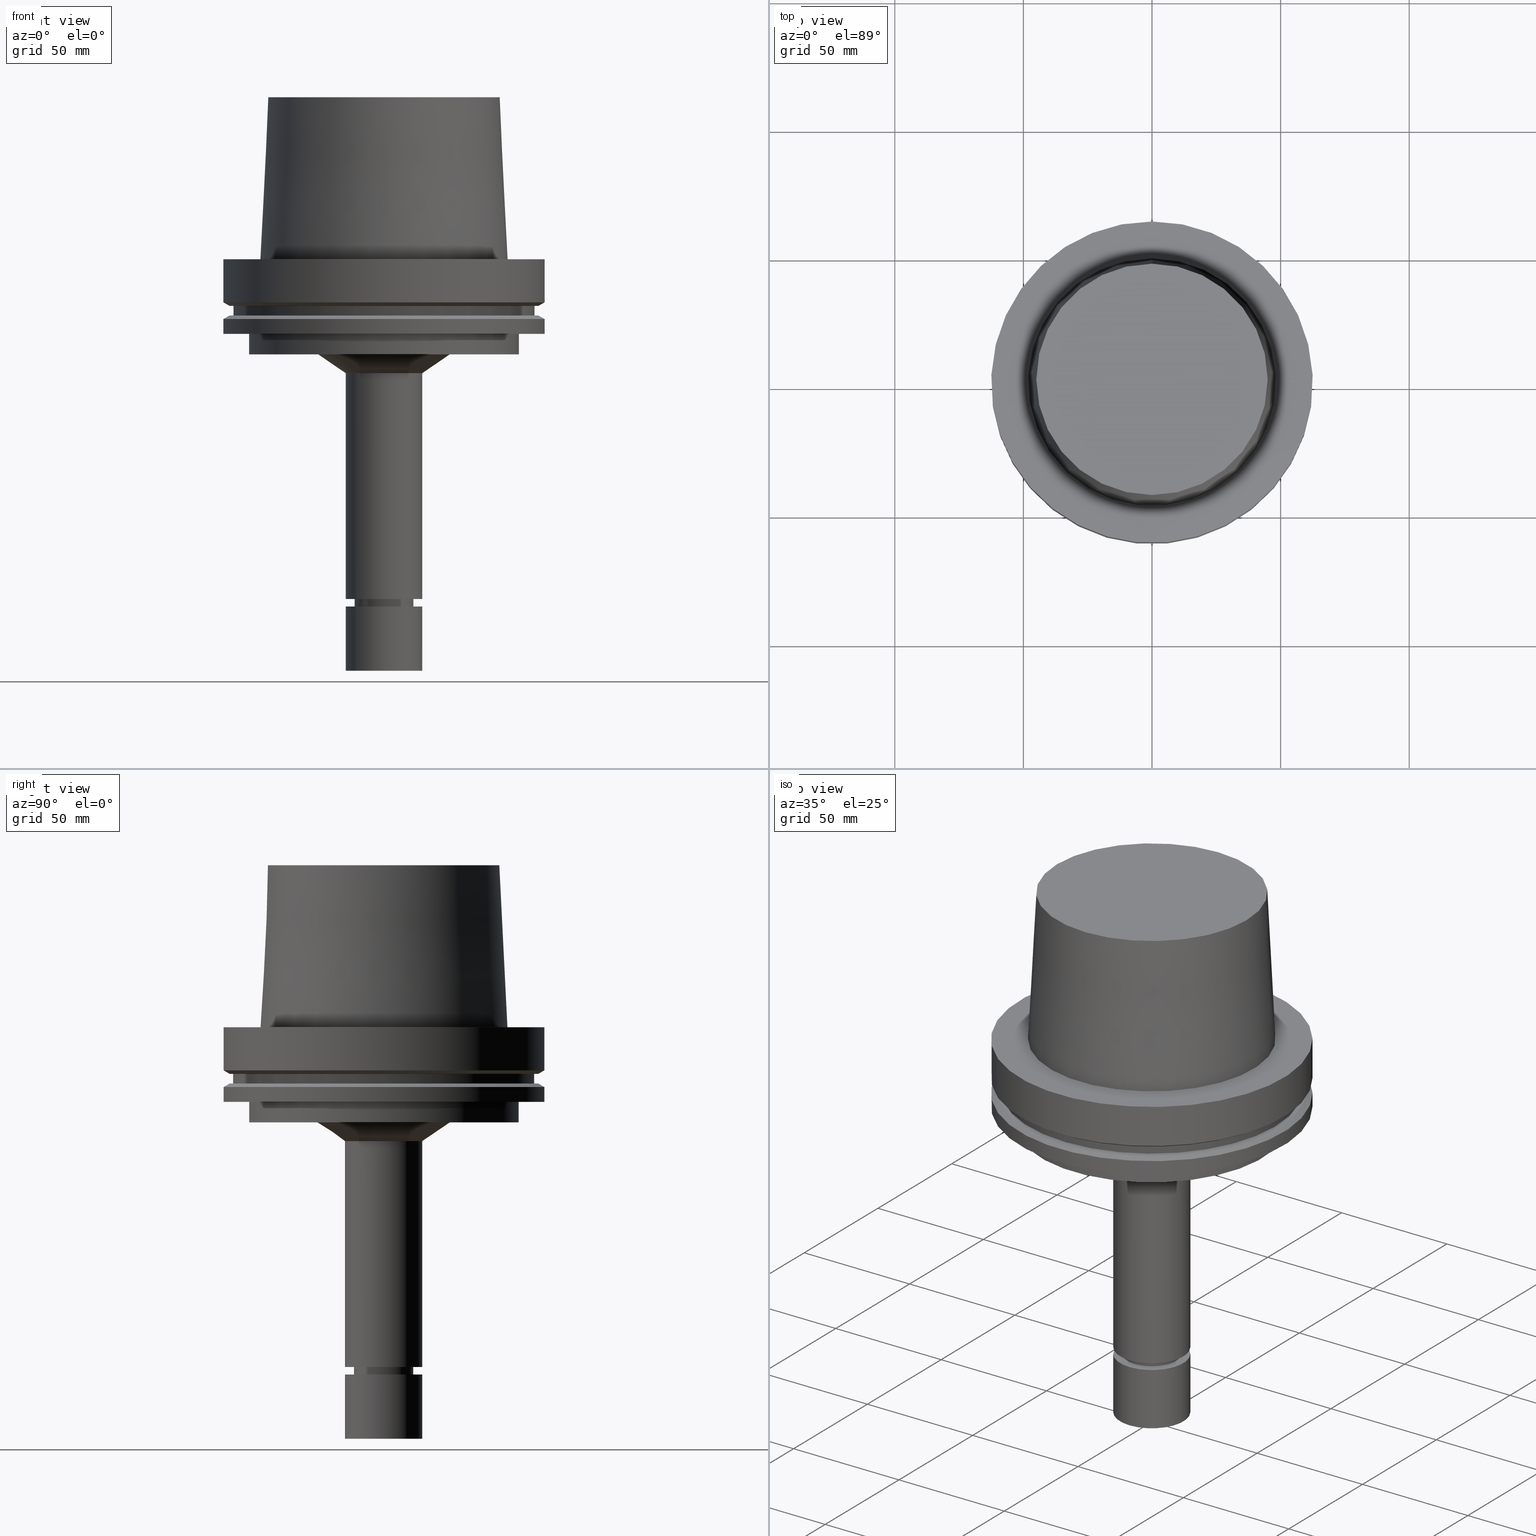
[diagram: canonical four-view strip — front | top / right | iso, engineering-drawing reading convention]
A machine part, canonical four-view strip (front | top / right | iso — engineering-drawing reading convention). The complete STEP part file that produces these views, byte-faithful:
ISO-10303-21;
HEADER;
FILE_DESCRIPTION((''),'1');
FILE_NAME('U:/Translate/02_3D_Field-HP\X2\FF71FF6FFF8CFF9F5916\X0\2013/02_Step_Field-HP\X2\FF71FF6FFF8CFF9F5916\X0\2013/HSK-A125-MEGAER16-160NL.stp','2016-06-22T04:30:00',(''),(''),'Spatial Interop R21 SP3','Kubotek KeyCreator 2011 V10.0.2 (22737)',' ');
FILE_SCHEMA(('automotive_design'));
ENDSEC;
DATA;
#1=MECHANICAL_DESIGN_GEOMETRIC_PRESENTATION_REPRESENTATION(' ',(#14,#15,#16,#17,#18,#19,#20,#21,#22,#23,#24,#25,#26,#27,#28,#29,#30,#31,#32,#33,#34,#35,#36,#37,#38,#39,#40,#41,#42,#43,#44,#45,#46,#47,#48,#49,#50,#51,#52,#53,#54,#55,#56,#57,#58,#59,#60,#61),#10);
#2=PRODUCT_DEFINITION_CONTEXT('',#62,'design');
#3=APPLICATION_PROTOCOL_DEFINITION('INTERNATIONAL STANDARD','automotive_design',1994,#62);
#4=PRODUCT_CATEGORY_RELATIONSHIP('NONE','NONE',#63,#64);
#5=SHAPE_DEFINITION_REPRESENTATION(#65,#66);
#6=PRODUCT_DEFINITION_CONTEXT('',#67,'design');
#7=APPLICATION_PROTOCOL_DEFINITION('INTERNATIONAL STANDARD','automotive_design',1994,#67);
#8=PRODUCT_CATEGORY_RELATIONSHIP('NONE','NONE',#68,#69);
#9=SHAPE_DEFINITION_REPRESENTATION(#70,#71);
#10= (GEOMETRIC_REPRESENTATION_CONTEXT(3)GLOBAL_UNCERTAINTY_ASSIGNED_CONTEXT((#74))GLOBAL_UNIT_ASSIGNED_CONTEXT((#76,#77,#78))REPRESENTATION_CONTEXT('NONE','WORKSPACE'));
#14=STYLED_ITEM('',(#80),#81);
#15=STYLED_ITEM('',(#82,#83),#84);
#16=STYLED_ITEM('',(#85),#86);
#17=STYLED_ITEM('',(#87,#88),#89);
#18=STYLED_ITEM('',(#90,#91),#92);
#19=STYLED_ITEM('',(#93,#94),#95);
#20=STYLED_ITEM('',(#96),#97);
#21=STYLED_ITEM('',(#98,#99),#100);
#22=STYLED_ITEM('',(#101,#102),#103);
#23=STYLED_ITEM('',(#104,#105),#106);
#24=STYLED_ITEM('',(#107),#108);
#25=STYLED_ITEM('',(#109,#110),#111);
#26=STYLED_ITEM('',(#112),#113);
#27=STYLED_ITEM('',(#114,#115),#116);
#28=STYLED_ITEM('',(#117,#118),#119);
#29=STYLED_ITEM('',(#120),#121);
#30=STYLED_ITEM('',(#122,#123),#124);
#31=STYLED_ITEM('',(#125),#126);
#32=STYLED_ITEM('',(#127),#128);
#33=STYLED_ITEM('',(#129),#130);
#34=STYLED_ITEM('',(#131,#132),#133);
#35=STYLED_ITEM('',(#134,#135),#136);
#36=STYLED_ITEM('',(#137),#138);
#37=STYLED_ITEM('',(#139),#140);
#38=STYLED_ITEM('',(#141,#142),#143);
#39=STYLED_ITEM('',(#144),#145);
#40=STYLED_ITEM('',(#146,#147),#148);
#41=STYLED_ITEM('',(#149,#150),#151);
#42=STYLED_ITEM('',(#152,#153),#154);
#43=STYLED_ITEM('',(#155,#156),#157);
#44=STYLED_ITEM('',(#158,#159),#160);
#45=STYLED_ITEM('',(#161),#162);
#46=STYLED_ITEM('',(#163),#164);
#47=STYLED_ITEM('',(#165,#166),#167);
#48=STYLED_ITEM('',(#168),#169);
#49=STYLED_ITEM('',(#170,#171),#172);
#50=STYLED_ITEM('',(#173),#174);
#51=STYLED_ITEM('',(#175),#176);
#52=STYLED_ITEM('',(#177),#178);
#53=STYLED_ITEM('',(#179),#180);
#54=STYLED_ITEM('',(#181,#182),#183);
#55=STYLED_ITEM('',(#184),#185);
#56=STYLED_ITEM('',(#186),#187);
#57=STYLED_ITEM('',(#188,#189),#190);
#58=STYLED_ITEM('',(#191),#192);
#59=STYLED_ITEM('',(#193,#194),#195);
#60=STYLED_ITEM('',(#196,#197),#198);
#61=STYLED_ITEM('',(#199,#200),#201);
#62=APPLICATION_CONTEXT(' ');
#63=PRODUCT_CATEGORY('part','NONE');
#64=PRODUCT_RELATED_PRODUCT_CATEGORY('detail',' ',(#202));
#65=PRODUCT_DEFINITION_SHAPE('NONE','NONE',#203);
#66=ADVANCED_BREP_SHAPE_REPRESENTATION('Unnamed[1]',(#172,#204),#10);
#67=APPLICATION_CONTEXT(' ');
#68=PRODUCT_CATEGORY('part','NONE');
#69=PRODUCT_RELATED_PRODUCT_CATEGORY('detail',' ',(#205));
#70=PRODUCT_DEFINITION_SHAPE('NONE','NONE',#206);
#71=ADVANCED_BREP_SHAPE_REPRESENTATION('Unnamed[1]',(#84,#207),#10);
#74=UNCERTAINTY_MEASURE_WITH_UNIT(LENGTH_MEASURE(1.0E-006),#76,'','');
#76= (CONVERSION_BASED_UNIT('MILLIMETRE',#210)LENGTH_UNIT()NAMED_UNIT(#213));
#77= (NAMED_UNIT(#215)PLANE_ANGLE_UNIT()SI_UNIT($,.RADIAN.));
#78= (NAMED_UNIT(#215)SOLID_ANGLE_UNIT()SI_UNIT($,.STERADIAN.));
#80=PRESENTATION_STYLE_ASSIGNMENT((#221));
#81=EDGE_CURVE('Unnamed[1]',#222,#222,#223,.T.);
#82=PRESENTATION_STYLE_ASSIGNMENT((#224));
#83=PRESENTATION_STYLE_ASSIGNMENT((#225));
#84=MANIFOLD_SOLID_BREP('Unnamed[1]',#226);
#85=PRESENTATION_STYLE_ASSIGNMENT((#227));
#86=EDGE_CURVE('Unnamed[1]',#228,#228,#229,.T.);
#87=PRESENTATION_STYLE_ASSIGNMENT((#230));
#88=PRESENTATION_STYLE_ASSIGNMENT((#231));
#89=ADVANCED_FACE('Unnamed[1]',(#232,#233),#234,.T.);
#90=PRESENTATION_STYLE_ASSIGNMENT((#235));
#91=PRESENTATION_STYLE_ASSIGNMENT((#236));
#92=ADVANCED_FACE('Unnamed[1]',(#237,#238),#239,.T.);
#93=PRESENTATION_STYLE_ASSIGNMENT((#240));
#94=PRESENTATION_STYLE_ASSIGNMENT((#241));
#95=ADVANCED_FACE('Unnamed[1]',(#242,#243),#244,.T.);
#96=PRESENTATION_STYLE_ASSIGNMENT((#245));
#97=EDGE_CURVE('Unnamed[1]',#246,#246,#247,.T.);
#98=PRESENTATION_STYLE_ASSIGNMENT((#248));
#99=PRESENTATION_STYLE_ASSIGNMENT((#249));
#100=ADVANCED_FACE('Unnamed[1]',(#250),#251,.T.);
#101=PRESENTATION_STYLE_ASSIGNMENT((#252));
#102=PRESENTATION_STYLE_ASSIGNMENT((#253));
#103=ADVANCED_FACE('Unnamed[1]',(#254,#255),#256,.T.);
#104=PRESENTATION_STYLE_ASSIGNMENT((#257));
#105=PRESENTATION_STYLE_ASSIGNMENT((#258));
#106=ADVANCED_FACE('Unnamed[1]',(#259),#260,.T.);
#107=PRESENTATION_STYLE_ASSIGNMENT((#261));
#108=EDGE_CURVE('Unnamed[1]',#262,#262,#263,.T.);
#109=PRESENTATION_STYLE_ASSIGNMENT((#264));
#110=PRESENTATION_STYLE_ASSIGNMENT((#265));
#111=ADVANCED_FACE('Unnamed[1]',(#266),#267,.T.);
#112=PRESENTATION_STYLE_ASSIGNMENT((#268));
#113=EDGE_CURVE('Unnamed[1]',#269,#269,#270,.T.);
#114=PRESENTATION_STYLE_ASSIGNMENT((#271));
#115=PRESENTATION_STYLE_ASSIGNMENT((#272));
#116=ADVANCED_FACE('Unnamed[1]',(#273,#274),#275,.T.);
#117=PRESENTATION_STYLE_ASSIGNMENT((#276));
#118=PRESENTATION_STYLE_ASSIGNMENT((#277));
#119=ADVANCED_FACE('Unnamed[1]',(#278,#279),#280,.T.);
#120=PRESENTATION_STYLE_ASSIGNMENT((#281));
#121=EDGE_CURVE('Unnamed[1]',#282,#282,#283,.T.);
#122=PRESENTATION_STYLE_ASSIGNMENT((#284));
#123=PRESENTATION_STYLE_ASSIGNMENT((#285));
#124=ADVANCED_FACE('Unnamed[1]',(#286,#287),#288,.T.);
#125=PRESENTATION_STYLE_ASSIGNMENT((#289));
#126=EDGE_CURVE('Unnamed[1]',#290,#290,#291,.T.);
#127=PRESENTATION_STYLE_ASSIGNMENT((#292));
#128=EDGE_CURVE('Unnamed[1]',#293,#293,#294,.T.);
#129=PRESENTATION_STYLE_ASSIGNMENT((#295));
#130=EDGE_CURVE('Unnamed[1]',#296,#296,#297,.T.);
#131=PRESENTATION_STYLE_ASSIGNMENT((#298));
#132=PRESENTATION_STYLE_ASSIGNMENT((#299));
#133=ADVANCED_FACE('Unnamed[1]',(#300,#301),#302,.T.);
#134=PRESENTATION_STYLE_ASSIGNMENT((#303));
#135=PRESENTATION_STYLE_ASSIGNMENT((#304));
#136=ADVANCED_FACE('Unnamed[1]',(#305,#306),#307,.T.);
#137=PRESENTATION_STYLE_ASSIGNMENT((#308));
#138=EDGE_CURVE('Unnamed[1]',#309,#309,#310,.T.);
#139=PRESENTATION_STYLE_ASSIGNMENT((#311));
#140=EDGE_CURVE('Unnamed[1]',#312,#312,#313,.T.);
#141=PRESENTATION_STYLE_ASSIGNMENT((#314));
#142=PRESENTATION_STYLE_ASSIGNMENT((#315));
#143=ADVANCED_FACE('Unnamed[1]',(#316),#317,.T.);
#144=PRESENTATION_STYLE_ASSIGNMENT((#318));
#145=EDGE_CURVE('Unnamed[1]',#319,#319,#320,.T.);
#146=PRESENTATION_STYLE_ASSIGNMENT((#321));
#147=PRESENTATION_STYLE_ASSIGNMENT((#322));
#148=ADVANCED_FACE('Unnamed[1]',(#323,#324),#325,.T.);
#149=PRESENTATION_STYLE_ASSIGNMENT((#326));
#150=PRESENTATION_STYLE_ASSIGNMENT((#327));
#151=ADVANCED_FACE('Unnamed[1]',(#328,#329),#330,.T.);
#152=PRESENTATION_STYLE_ASSIGNMENT((#331));
#153=PRESENTATION_STYLE_ASSIGNMENT((#332));
#154=ADVANCED_FACE('Unnamed[1]',(#333,#334),#335,.T.);
#155=PRESENTATION_STYLE_ASSIGNMENT((#336));
#156=PRESENTATION_STYLE_ASSIGNMENT((#337));
#157=ADVANCED_FACE('Unnamed[1]',(#338,#339),#340,.T.);
#158=PRESENTATION_STYLE_ASSIGNMENT((#341));
#159=PRESENTATION_STYLE_ASSIGNMENT((#342));
#160=ADVANCED_FACE('Unnamed[1]',(#343,#344),#345,.T.);
#161=PRESENTATION_STYLE_ASSIGNMENT((#346));
#162=EDGE_CURVE('Unnamed[1]',#347,#347,#348,.T.);
#163=PRESENTATION_STYLE_ASSIGNMENT((#349));
#164=EDGE_CURVE('Unnamed[1]',#350,#350,#351,.T.);
#165=PRESENTATION_STYLE_ASSIGNMENT((#352));
#166=PRESENTATION_STYLE_ASSIGNMENT((#353));
#167=ADVANCED_FACE('Unnamed[1]',(#354,#355),#356,.T.);
#168=PRESENTATION_STYLE_ASSIGNMENT((#357));
#169=EDGE_CURVE('Unnamed[1]',#358,#358,#359,.T.);
#170=PRESENTATION_STYLE_ASSIGNMENT((#360));
#171=PRESENTATION_STYLE_ASSIGNMENT((#361));
#172=MANIFOLD_SOLID_BREP('Unnamed[1]',#362);
#173=PRESENTATION_STYLE_ASSIGNMENT((#363));
#174=EDGE_CURVE('Unnamed[1]',#364,#364,#365,.T.);
#175=PRESENTATION_STYLE_ASSIGNMENT((#366));
#176=EDGE_CURVE('Unnamed[1]',#367,#367,#368,.T.);
#177=PRESENTATION_STYLE_ASSIGNMENT((#369));
#178=EDGE_CURVE('Unnamed[1]',#370,#370,#371,.T.);
#179=PRESENTATION_STYLE_ASSIGNMENT((#372));
#180=EDGE_CURVE('Unnamed[1]',#373,#373,#374,.T.);
#181=PRESENTATION_STYLE_ASSIGNMENT((#375));
#182=PRESENTATION_STYLE_ASSIGNMENT((#376));
#183=ADVANCED_FACE('Unnamed[1]',(#377,#378),#379,.T.);
#184=PRESENTATION_STYLE_ASSIGNMENT((#380));
#185=EDGE_CURVE('Unnamed[1]',#381,#381,#382,.T.);
#186=PRESENTATION_STYLE_ASSIGNMENT((#383));
#187=EDGE_CURVE('Unnamed[1]',#384,#384,#385,.T.);
#188=PRESENTATION_STYLE_ASSIGNMENT((#386));
#189=PRESENTATION_STYLE_ASSIGNMENT((#387));
#190=ADVANCED_FACE('Unnamed[1]',(#388,#389),#390,.T.);
#191=PRESENTATION_STYLE_ASSIGNMENT((#391));
#192=EDGE_CURVE('Unnamed[1]',#392,#392,#393,.T.);
#193=PRESENTATION_STYLE_ASSIGNMENT((#394));
#194=PRESENTATION_STYLE_ASSIGNMENT((#395));
#195=ADVANCED_FACE('Unnamed[1]',(#396,#397),#398,.T.);
#196=PRESENTATION_STYLE_ASSIGNMENT((#399));
#197=PRESENTATION_STYLE_ASSIGNMENT((#400));
#198=ADVANCED_FACE('Unnamed[1]',(#401,#402),#403,.T.);
#199=PRESENTATION_STYLE_ASSIGNMENT((#404));
#200=PRESENTATION_STYLE_ASSIGNMENT((#405));
#201=ADVANCED_FACE('Unnamed[1]',(#406,#407),#408,.T.);
#202=PRODUCT('Unnamed[1]','Unnamed[1]','PART-Unnamed[1]-DESC',(#409));
#203=PRODUCT_DEFINITION('NONE','NONE',#410,#2);
#204=AXIS2_PLACEMENT_3D('',#411,#412,#413);
#205=PRODUCT('Unnamed[1]','Unnamed[1]','PART-Unnamed[1]-DESC',(#414));
#206=PRODUCT_DEFINITION('NONE','NONE',#415,#6);
#207=AXIS2_PLACEMENT_3D('',#416,#417,#418);
#210=LENGTH_MEASURE_WITH_UNIT(LENGTH_MEASURE(1.0),#419);
#213=DIMENSIONAL_EXPONENTS(1.0,0.0,0.0,0.0,0.0,0.0,0.0);
#215=DIMENSIONAL_EXPONENTS(0.0,0.0,0.0,0.0,0.0,0.0,0.0);
#221=CURVE_STYLE('',#420,POSITIVE_LENGTH_MEASURE(1000.0),#421);
#222=VERTEX_POINT('',#422);
#223=CIRCLE('',#423,62.5);
#224=SURFACE_STYLE_USAGE(.BOTH.,#424);
#225=CURVE_STYLE('',#425,POSITIVE_LENGTH_MEASURE(1000.0),#426);
#226=CLOSED_SHELL('',(#100,#111,#148));
#227=CURVE_STYLE('',#427,POSITIVE_LENGTH_MEASURE(1000.0),#428);
#228=VERTEX_POINT('',#429);
#229=CIRCLE('',#430,52.5);
#230=SURFACE_STYLE_USAGE(.BOTH.,#431);
#231=CURVE_STYLE('',#432,POSITIVE_LENGTH_MEASURE(1000.0),#433);
#232=FACE_BOUND('',#434,.T.);
#233=FACE_BOUND('',#435,.T.);
#234=CONICAL_SURFACE('',#436,20.3465340776725,0.974044773767838);
#235=SURFACE_STYLE_USAGE(.BOTH.,#437);
#236=CURVE_STYLE('',#438,POSITIVE_LENGTH_MEASURE(1000.0),#439);
#237=FACE_BOUND('',#440,.T.);
#238=FACE_BOUND('',#441,.T.);
#239=CYLINDRICAL_SURFACE('',#442,62.5000000000001);
#240=SURFACE_STYLE_USAGE(.BOTH.,#443);
#241=CURVE_STYLE('',#444,POSITIVE_LENGTH_MEASURE(1000.0),#445);
#242=FACE_BOUND('',#446,.T.);
#243=FACE_BOUND('',#447,.T.);
#244=CYLINDRICAL_SURFACE('',#448,11.4999999999965);
#245=CURVE_STYLE('',#449,POSITIVE_LENGTH_MEASURE(1000.0),#450);
#246=VERTEX_POINT('',#451);
#247=CIRCLE('',#452,48.1342525050097);
#248=SURFACE_STYLE_USAGE(.BOTH.,#453);
#249=CURVE_STYLE('',#454,POSITIVE_LENGTH_MEASURE(1000.0),#455);
#250=FACE_OUTER_BOUND('',#456,.T.);
#251=PLANE('',#457);
#252=SURFACE_STYLE_USAGE(.BOTH.,#458);
#253=CURVE_STYLE('',#459,POSITIVE_LENGTH_MEASURE(1000.0),#460);
#254=FACE_BOUND('',#461,.T.);
#255=FACE_OUTER_BOUND('',#462,.T.);
#256=PLANE('',#463);
#257=SURFACE_STYLE_USAGE(.BOTH.,#464);
#258=CURVE_STYLE('',#465,POSITIVE_LENGTH_MEASURE(1000.0),#466);
#259=FACE_OUTER_BOUND('',#467,.T.);
#260=PLANE('',#468);
#261=CURVE_STYLE('',#469,POSITIVE_LENGTH_MEASURE(1000.0),#470);
#262=VERTEX_POINT('',#471);
#263=CIRCLE('',#472,60.1225952641912);
#264=SURFACE_STYLE_USAGE(.BOTH.,#473);
#265=CURVE_STYLE('',#474,POSITIVE_LENGTH_MEASURE(1000.0),#475);
#266=FACE_OUTER_BOUND('',#476,.T.);
#267=PLANE('',#477);
#268=CURVE_STYLE('',#478,POSITIVE_LENGTH_MEASURE(1000.0),#479);
#269=VERTEX_POINT('',#480);
#270=CIRCLE('',#481,15.0000000000002);
#271=SURFACE_STYLE_USAGE(.BOTH.,#482);
#272=CURVE_STYLE('',#483,POSITIVE_LENGTH_MEASURE(1000.0),#484);
#273=FACE_BOUND('',#485,.T.);
#274=FACE_BOUND('',#486,.T.);
#275=CONICAL_SURFACE('',#487,61.3112976320956,1.04719755119668);
#276=SURFACE_STYLE_USAGE(.BOTH.,#488);
#277=CURVE_STYLE('',#489,POSITIVE_LENGTH_MEASURE(1000.0),#490);
#278=FACE_OUTER_BOUND('',#491,.T.);
#279=FACE_BOUND('',#492,.T.);
#280=PLANE('',#493);
#281=CURVE_STYLE('',#494,POSITIVE_LENGTH_MEASURE(1000.0),#495);
#282=VERTEX_POINT('',#496);
#283=CIRCLE('',#497,60.122595264194);
#284=SURFACE_STYLE_USAGE(.BOTH.,#498);
#285=CURVE_STYLE('',#499,POSITIVE_LENGTH_MEASURE(1000.0),#500);
#286=FACE_BOUND('',#501,.T.);
#287=FACE_BOUND('',#502,.T.);
#288=CYLINDRICAL_SURFACE('',#503,58.4999999999999);
#289=CURVE_STYLE('',#504,POSITIVE_LENGTH_MEASURE(1000.0),#505);
#290=VERTEX_POINT('',#506);
#291=CIRCLE('',#507,52.4999999999999);
#292=CURVE_STYLE('',#508,POSITIVE_LENGTH_MEASURE(1000.0),#509);
#293=VERTEX_POINT('',#510);
#294=CIRCLE('',#511,11.0);
#295=CURVE_STYLE('',#512,POSITIVE_LENGTH_MEASURE(1000.0),#513);
#296=VERTEX_POINT('',#514);
#297=CIRCLE('',#515,11.0000000000004);
#298=SURFACE_STYLE_USAGE(.BOTH.,#516);
#299=CURVE_STYLE('',#517,POSITIVE_LENGTH_MEASURE(1000.0),#518);
#300=FACE_BOUND('',#519,.T.);
#301=FACE_BOUND('',#520,.T.);
#302=CYLINDRICAL_SURFACE('',#521,11.0000000000002);
#303=SURFACE_STYLE_USAGE(.BOTH.,#522);
#304=CURVE_STYLE('',#523,POSITIVE_LENGTH_MEASURE(1000.0),#524);
#305=FACE_BOUND('',#525,.T.);
#306=FACE_BOUND('',#526,.T.);
#307=CONICAL_SURFACE('',#527,11.2500000000011,0.766162649701788);
#308=CURVE_STYLE('',#528,POSITIVE_LENGTH_MEASURE(1000.0),#529);
#309=VERTEX_POINT('',#530);
#310=CIRCLE('',#531,11.5000000000022);
#311=CURVE_STYLE('',#532,POSITIVE_LENGTH_MEASURE(1000.0),#533);
#312=VERTEX_POINT('',#534);
#313=CIRCLE('',#535,25.6930681553449);
#314=SURFACE_STYLE_USAGE(.BOTH.,#536);
#315=CURVE_STYLE('',#537,POSITIVE_LENGTH_MEASURE(1000.0),#538);
#316=FACE_OUTER_BOUND('',#539,.T.);
#317=PLANE('',#540);
#318=CURVE_STYLE('',#541,POSITIVE_LENGTH_MEASURE(1000.0),#542);
#319=VERTEX_POINT('',#543);
#320=CIRCLE('',#544,62.5);
#321=SURFACE_STYLE_USAGE(.BOTH.,#545);
#322=CURVE_STYLE('',#546,POSITIVE_LENGTH_MEASURE(1000.0),#547);
#323=FACE_BOUND('',#548,.T.);
#324=FACE_BOUND('',#549,.T.);
#325=CYLINDRICAL_SURFACE('',#550,15.0000000000002);
#326=SURFACE_STYLE_USAGE(.BOTH.,#551);
#327=CURVE_STYLE('',#552,POSITIVE_LENGTH_MEASURE(1000.0),#553);
#328=FACE_BOUND('',#554,.T.);
#329=FACE_BOUND('',#555,.T.);
#330=CYLINDRICAL_SURFACE('',#556,52.5);
#331=SURFACE_STYLE_USAGE(.BOTH.,#557);
#332=CURVE_STYLE('',#558,POSITIVE_LENGTH_MEASURE(1000.0),#559);
#333=FACE_BOUND('',#560,.T.);
#334=FACE_BOUND('',#561,.T.);
#335=CYLINDRICAL_SURFACE('',#562,62.5);
#336=SURFACE_STYLE_USAGE(.BOTH.,#563);
#337=CURVE_STYLE('',#564,POSITIVE_LENGTH_MEASURE(1000.0),#565);
#338=FACE_OUTER_BOUND('',#566,.T.);
#339=FACE_BOUND('',#567,.T.);
#340=PLANE('',#568);
#341=SURFACE_STYLE_USAGE(.BOTH.,#569);
#342=CURVE_STYLE('',#570,POSITIVE_LENGTH_MEASURE(1000.0),#571);
#343=FACE_BOUND('',#572,.T.);
#344=FACE_BOUND('',#573,.T.);
#345=CONICAL_SURFACE('',#574,10.4500000000001,0.523598775598198);
#346=CURVE_STYLE('',#575,POSITIVE_LENGTH_MEASURE(1000.0),#576);
#347=VERTEX_POINT('',#577);
#348=CIRCLE('',#578,58.4999999999998);
#349=CURVE_STYLE('',#579,POSITIVE_LENGTH_MEASURE(1000.0),#580);
#350=VERTEX_POINT('',#581);
#351=CIRCLE('',#582,11.4999999999908);
#352=SURFACE_STYLE_USAGE(.BOTH.,#583);
#353=CURVE_STYLE('',#584,POSITIVE_LENGTH_MEASURE(1000.0),#585);
#354=FACE_BOUND('',#586,.T.);
#355=FACE_BOUND('',#587,.T.);
#356=CONICAL_SURFACE('',#588,46.5560961923844,0.0500583457465964);
#357=CURVE_STYLE('',#589,POSITIVE_LENGTH_MEASURE(1000.0),#590);
#358=VERTEX_POINT('',#591);
#359=CIRCLE('',#592,62.5000000000002);
#360=SURFACE_STYLE_USAGE(.BOTH.,#593);
#361=CURVE_STYLE('',#594,POSITIVE_LENGTH_MEASURE(1000.0),#595);
#362=CLOSED_SHELL('',(#106,#167,#157,#92,#116,#201,#124,#119,#195,#154,#198,#151,#190,#89,#183,#103,#95,#136,#133,#160,#143));
#363=CURVE_STYLE('',#596,POSITIVE_LENGTH_MEASURE(1000.0),#597);
#364=VERTEX_POINT('',#598);
#365=CIRCLE('',#599,15.0000000000001);
#366=CURVE_STYLE('',#600,POSITIVE_LENGTH_MEASURE(1000.0),#601);
#367=VERTEX_POINT('',#602);
#368=CIRCLE('',#603,58.5000000000001);
#369=CURVE_STYLE('',#604,POSITIVE_LENGTH_MEASURE(1000.0),#605);
#370=VERTEX_POINT('',#606);
#371=CIRCLE('',#607,15.0000000000001);
#372=CURVE_STYLE('',#608,POSITIVE_LENGTH_MEASURE(1000.0),#609);
#373=VERTEX_POINT('',#610);
#374=CIRCLE('',#611,9.89999999999974);
#375=SURFACE_STYLE_USAGE(.BOTH.,#612);
#376=CURVE_STYLE('',#613,POSITIVE_LENGTH_MEASURE(1000.0),#614);
#377=FACE_BOUND('',#615,.T.);
#378=FACE_BOUND('',#616,.T.);
#379=CYLINDRICAL_SURFACE('',#617,15.0000000000001);
#380=CURVE_STYLE('',#618,POSITIVE_LENGTH_MEASURE(1000.0),#619);
#381=VERTEX_POINT('',#620);
#382=CIRCLE('',#621,62.5);
#383=CURVE_STYLE('',#622,POSITIVE_LENGTH_MEASURE(1000.0),#623);
#384=VERTEX_POINT('',#624);
#385=CIRCLE('',#625,15.0000000000001);
#386=SURFACE_STYLE_USAGE(.BOTH.,#626);
#387=CURVE_STYLE('',#627,POSITIVE_LENGTH_MEASURE(1000.0),#628);
#388=FACE_BOUND('',#629,.T.);
#389=FACE_OUTER_BOUND('',#630,.T.);
#390=PLANE('',#631);
#391=CURVE_STYLE('',#632,POSITIVE_LENGTH_MEASURE(1000.0),#633);
#392=VERTEX_POINT('',#634);
#393=CIRCLE('',#635,44.977939879759);
#394=SURFACE_STYLE_USAGE(.BOTH.,#636);
#395=CURVE_STYLE('',#637,POSITIVE_LENGTH_MEASURE(1000.0),#638);
#396=FACE_BOUND('',#639,.T.);
#397=FACE_BOUND('',#640,.T.);
#398=CONICAL_SURFACE('',#641,61.311297632097,1.04719755119646);
#399=SURFACE_STYLE_USAGE(.BOTH.,#642);
#400=CURVE_STYLE('',#643,POSITIVE_LENGTH_MEASURE(1000.0),#644);
#401=FACE_BOUND('',#645,.T.);
#402=FACE_OUTER_BOUND('',#646,.T.);
#403=PLANE('',#647);
#404=SURFACE_STYLE_USAGE(.BOTH.,#648);
#405=CURVE_STYLE('',#649,POSITIVE_LENGTH_MEASURE(1000.0),#650);
#406=FACE_BOUND('',#651,.T.);
#407=FACE_OUTER_BOUND('',#652,.T.);
#408=PLANE('',#653);
#409=PRODUCT_CONTEXT('',#62,'mechanical');
#410=PRODUCT_DEFINITION_FORMATION_WITH_SPECIFIED_SOURCE(' ','NONE',#202,.NOT_KNOWN.);
#411=CARTESIAN_POINT('',(0.0,0.0,0.0));
#412=DIRECTION('',(0.0,0.0,1.0));
#413=DIRECTION('',(1.0,0.0,0.0));
#414=PRODUCT_CONTEXT('',#67,'mechanical');
#415=PRODUCT_DEFINITION_FORMATION_WITH_SPECIFIED_SOURCE(' ','NONE',#205,.NOT_KNOWN.);
#416=CARTESIAN_POINT('',(0.0,0.0,0.0));
#417=DIRECTION('',(0.0,0.0,1.0));
#418=DIRECTION('',(1.0,0.0,0.0));
#419= (NAMED_UNIT(#213)LENGTH_UNIT()SI_UNIT(.MILLI.,.METRE.));
#420=DRAUGHTING_PRE_DEFINED_CURVE_FONT('continuous');
#421=COLOUR_RGB('',0.0,1.0,0.0);
#422=CARTESIAN_POINT('',(1.77573785876366E-015,62.5,-29.0));
#423=AXIS2_PLACEMENT_3D('',#655,#656,#657);
#424=SURFACE_SIDE_STYLE('',(#658));
#425=DRAUGHTING_PRE_DEFINED_CURVE_FONT('continuous');
#426=COLOUR_RGB('',0.0,1.0,0.0);
#427=DRAUGHTING_PRE_DEFINED_CURVE_FONT('continuous');
#428=COLOUR_RGB('',0.0,1.0,0.0);
#429=CARTESIAN_POINT('',(1.77573785876367E-015,52.5,-29.0000000000001));
#430=AXIS2_PLACEMENT_3D('',#659,#660,#661);
#431=SURFACE_SIDE_STYLE('',(#662));
#432=DRAUGHTING_PRE_DEFINED_CURVE_FONT('continuous');
#433=COLOUR_RGB('',0.0,1.0,0.0);
#434=EDGE_LOOP('',(#663));
#435=EDGE_LOOP('',(#664));
#436=AXIS2_PLACEMENT_3D('',#665,#666,#667);
#437=SURFACE_SIDE_STYLE('',(#668));
#438=DRAUGHTING_PRE_DEFINED_CURVE_FONT('continuous');
#439=COLOUR_RGB('',0.0,1.0,0.0);
#440=EDGE_LOOP('',(#669));
#441=EDGE_LOOP('',(#670));
#442=AXIS2_PLACEMENT_3D('',#671,#672,#673);
#443=SURFACE_SIDE_STYLE('',(#674));
#444=DRAUGHTING_PRE_DEFINED_CURVE_FONT('continuous');
#445=COLOUR_RGB('',0.0,1.0,0.0);
#446=EDGE_LOOP('',(#675));
#447=EDGE_LOOP('',(#676));
#448=AXIS2_PLACEMENT_3D('',#677,#678,#679);
#449=DRAUGHTING_PRE_DEFINED_CURVE_FONT('continuous');
#450=COLOUR_RGB('',0.0,1.0,0.0);
#451=CARTESIAN_POINT('',(3.88158335277612E-029,48.1342525050097,-6.37705254174039E-013));
#452=AXIS2_PLACEMENT_3D('',#680,#681,#682);
#453=SURFACE_SIDE_STYLE('',(#683));
#454=DRAUGHTING_PRE_DEFINED_CURVE_FONT('continuous');
#455=COLOUR_RGB('',0.0,1.0,0.0);
#456=EDGE_LOOP('',(#684));
#457=AXIS2_PLACEMENT_3D('',#685,#686,#687);
#458=SURFACE_SIDE_STYLE('',(#688));
#459=DRAUGHTING_PRE_DEFINED_CURVE_FONT('continuous');
#460=COLOUR_RGB('',0.0,1.0,0.0);
#461=EDGE_LOOP('',(#689));
#462=EDGE_LOOP('',(#690));
#463=AXIS2_PLACEMENT_3D('',#691,#692,#693);
#464=SURFACE_SIDE_STYLE('',(#694));
#465=DRAUGHTING_PRE_DEFINED_CURVE_FONT('continuous');
#466=COLOUR_RGB('',0.0,1.0,0.0);
#467=EDGE_LOOP('',(#695));
#468=AXIS2_PLACEMENT_3D('',#696,#697,#698);
#469=DRAUGHTING_PRE_DEFINED_CURVE_FONT('continuous');
#470=COLOUR_RGB('',0.0,1.0,0.0);
#471=CARTESIAN_POINT('',(1.10983616172729E-015,60.1225952641912,-18.1250000000001));
#472=AXIS2_PLACEMENT_3D('',#699,#700,#701);
#473=SURFACE_SIDE_STYLE('',(#702));
#474=DRAUGHTING_PRE_DEFINED_CURVE_FONT('continuous');
#475=COLOUR_RGB('',0.0,1.0,0.0);
#476=EDGE_LOOP('',(#703));
#477=AXIS2_PLACEMENT_3D('',#704,#705,#706);
#478=DRAUGHTING_PRE_DEFINED_CURVE_FONT('continuous');
#479=COLOUR_RGB('',0.0,1.0,0.0);
#480=CARTESIAN_POINT('',(8.26636589424463E-015,15.0000000000001,-135.0));
#481=AXIS2_PLACEMENT_3D('',#707,#708,#709);
#482=SURFACE_SIDE_STYLE('',(#710));
#483=DRAUGHTING_PRE_DEFINED_CURVE_FONT('continuous');
#484=COLOUR_RGB('',0.0,1.0,0.0);
#485=EDGE_LOOP('',(#711));
#486=EDGE_LOOP('',(#712));
#487=AXIS2_PLACEMENT_3D('',#713,#714,#715);
#488=SURFACE_SIDE_STYLE('',(#716));
#489=DRAUGHTING_PRE_DEFINED_CURVE_FONT('continuous');
#490=COLOUR_RGB('',0.0,1.0,0.0);
#491=EDGE_LOOP('',(#717));
#492=EDGE_LOOP('',(#718));
#493=AXIS2_PLACEMENT_3D('',#719,#720,#721);
#494=DRAUGHTING_PRE_DEFINED_CURVE_FONT('continuous');
#495=COLOUR_RGB('',0.0,1.0,0.0);
#496=CARTESIAN_POINT('',(1.33945743656747E-015,60.122595264194,-21.8750000000009));
#497=AXIS2_PLACEMENT_3D('',#722,#723,#724);
#498=SURFACE_SIDE_STYLE('',(#725));
#499=DRAUGHTING_PRE_DEFINED_CURVE_FONT('continuous');
#500=COLOUR_RGB('',0.0,1.0,0.0);
#501=EDGE_LOOP('',(#726));
#502=EDGE_LOOP('',(#727));
#503=AXIS2_PLACEMENT_3D('',#728,#729,#730);
#504=DRAUGHTING_PRE_DEFINED_CURVE_FONT('continuous');
#505=COLOUR_RGB('',0.0,1.0,0.0);
#506=CARTESIAN_POINT('',(2.26559657842261E-015,52.4999999999999,-37.0000000000001));
#507=AXIS2_PLACEMENT_3D('',#731,#732,#733);
#508=DRAUGHTING_PRE_DEFINED_CURVE_FONT('continuous');
#509=COLOUR_RGB('',0.0,1.0,0.0);
#510=CARTESIAN_POINT('',(8.47645038529099E-015,10.9999999999999,-138.430940107672));
#511=AXIS2_PLACEMENT_3D('',#734,#735,#736);
#512=DRAUGHTING_PRE_DEFINED_CURVE_FONT('continuous');
#513=COLOUR_RGB('',0.0,1.0,0.0);
#514=CARTESIAN_POINT('',(9.1416665252941E-015,11.0000000000003,-149.294744111672));
#515=AXIS2_PLACEMENT_3D('',#737,#738,#739);
#516=SURFACE_SIDE_STYLE('',(#740));
#517=DRAUGHTING_PRE_DEFINED_CURVE_FONT('continuous');
#518=COLOUR_RGB('',0.0,1.0,0.0);
#519=EDGE_LOOP('',(#741));
#520=EDGE_LOOP('',(#742));
#521=AXIS2_PLACEMENT_3D('',#743,#744,#745);
#522=SURFACE_SIDE_STYLE('',(#746));
#523=DRAUGHTING_PRE_DEFINED_CURVE_FONT('continuous');
#524=COLOUR_RGB('',0.0,1.0,0.0);
#525=EDGE_LOOP('',(#747));
#526=EDGE_LOOP('',(#748));
#527=AXIS2_PLACEMENT_3D('',#749,#750,#751);
#528=DRAUGHTING_PRE_DEFINED_CURVE_FONT('continuous');
#529=COLOUR_RGB('',0.0,1.0,0.0);
#530=CARTESIAN_POINT('',(8.44463312812961E-015,11.5000000000021,-137.911324865408));
#531=AXIS2_PLACEMENT_3D('',#752,#753,#754);
#532=DRAUGHTING_PRE_DEFINED_CURVE_FONT('continuous');
#533=COLOUR_RGB('',0.0,1.0,0.0);
#534=CARTESIAN_POINT('',(2.26559657842261E-015,25.6930681553449,-37.0000000000001));
#535=AXIS2_PLACEMENT_3D('',#755,#756,#757);
#536=SURFACE_SIDE_STYLE('',(#758));
#537=DRAUGHTING_PRE_DEFINED_CURVE_FONT('continuous');
#538=COLOUR_RGB('',0.0,1.0,0.0);
#539=EDGE_LOOP('',(#759));
#540=AXIS2_PLACEMENT_3D('',#760,#761,#762);
#541=DRAUGHTING_PRE_DEFINED_CURVE_FONT('continuous');
#542=COLOUR_RGB('',0.0,1.0,0.0);
#543=CARTESIAN_POINT('',(1.42350465640827E-015,62.5,-23.2475952641916));
#544=AXIS2_PLACEMENT_3D('',#763,#764,#765);
#545=SURFACE_SIDE_STYLE('',(#766));
#546=DRAUGHTING_PRE_DEFINED_CURVE_FONT('continuous');
#547=COLOUR_RGB('',0.0,1.0,0.0);
#548=EDGE_LOOP('',(#767));
#549=EDGE_LOOP('',(#768));
#550=AXIS2_PLACEMENT_3D('',#769,#770,#771);
#551=SURFACE_SIDE_STYLE('',(#772));
#552=DRAUGHTING_PRE_DEFINED_CURVE_FONT('continuous');
#553=COLOUR_RGB('',0.0,1.0,0.0);
#554=EDGE_LOOP('',(#773));
#555=EDGE_LOOP('',(#774));
#556=AXIS2_PLACEMENT_3D('',#775,#776,#777);
#557=SURFACE_SIDE_STYLE('',(#778));
#558=DRAUGHTING_PRE_DEFINED_CURVE_FONT('continuous');
#559=COLOUR_RGB('',0.0,1.0,0.0);
#560=EDGE_LOOP('',(#779));
#561=EDGE_LOOP('',(#780));
#562=AXIS2_PLACEMENT_3D('',#781,#782,#783);
#563=SURFACE_SIDE_STYLE('',(#784));
#564=DRAUGHTING_PRE_DEFINED_CURVE_FONT('continuous');
#565=COLOUR_RGB('',0.0,1.0,0.0);
#566=EDGE_LOOP('',(#785));
#567=EDGE_LOOP('',(#786));
#568=AXIS2_PLACEMENT_3D('',#787,#788,#789);
#569=SURFACE_SIDE_STYLE('',(#790));
#570=DRAUGHTING_PRE_DEFINED_CURVE_FONT('continuous');
#571=COLOUR_RGB('',0.0,1.0,0.0);
#572=EDGE_LOOP('',(#791));
#573=EDGE_LOOP('',(#792));
#574=AXIS2_PLACEMENT_3D('',#793,#794,#795);
#575=DRAUGHTING_PRE_DEFINED_CURVE_FONT('continuous');
#576=COLOUR_RGB('',0.0,1.0,0.0);
#577=CARTESIAN_POINT('',(1.33945743656732E-015,58.4999999999998,-21.8749999999984));
#578=AXIS2_PLACEMENT_3D('',#796,#797,#798);
#579=DRAUGHTING_PRE_DEFINED_CURVE_FONT('continuous');
#580=COLOUR_RGB('',0.0,1.0,0.0);
#581=CARTESIAN_POINT('',(8.08879210836827E-015,11.4999999999907,-132.1));
#582=AXIS2_PLACEMENT_3D('',#799,#800,#801);
#583=SURFACE_SIDE_STYLE('',(#802));
#584=DRAUGHTING_PRE_DEFINED_CURVE_FONT('continuous');
#585=COLOUR_RGB('',0.0,1.0,0.0);
#586=EDGE_LOOP('',(#803));
#587=EDGE_LOOP('',(#804));
#588=AXIS2_PLACEMENT_3D('',#805,#806,#807);
#589=DRAUGHTING_PRE_DEFINED_CURVE_FONT('continuous');
#590=COLOUR_RGB('',0.0,1.0,0.0);
#591=CARTESIAN_POINT('',(-5.58935713239973E-030,62.5000000000002,8.63540424946709E-014));
#592=AXIS2_PLACEMENT_3D('',#808,#809,#810);
#593=SURFACE_SIDE_STYLE('',(#811));
#594=DRAUGHTING_PRE_DEFINED_CURVE_FONT('continuous');
#595=COLOUR_RGB('',0.0,1.0,0.0);
#596=DRAUGHTING_PRE_DEFINED_CURVE_FONT('continuous');
#597=COLOUR_RGB('',0.0,1.0,0.0);
#598=CARTESIAN_POINT('',(9.79717439317883E-015,15.0,-160.0));
#599=AXIS2_PLACEMENT_3D('',#812,#813,#814);
#600=DRAUGHTING_PRE_DEFINED_CURVE_FONT('continuous');
#601=COLOUR_RGB('',0.0,1.0,0.0);
#602=CARTESIAN_POINT('',(1.10983616172739E-015,58.5,-18.1250000000017));
#603=AXIS2_PLACEMENT_3D('',#815,#816,#817);
#604=DRAUGHTING_PRE_DEFINED_CURVE_FONT('continuous');
#605=COLOUR_RGB('',0.0,1.0,0.0);
#606=CARTESIAN_POINT('',(8.08879210836823E-015,15.0,-132.099999999999));
#607=AXIS2_PLACEMENT_3D('',#818,#819,#820);
#608=DRAUGHTING_PRE_DEFINED_CURVE_FONT('continuous');
#609=COLOUR_RGB('',0.0,1.0,0.0);
#610=CARTESIAN_POINT('',(9.25832980155394E-015,9.89999999999963,-151.199999999999));
#611=AXIS2_PLACEMENT_3D('',#821,#822,#823);
#612=SURFACE_SIDE_STYLE('',(#824));
#613=DRAUGHTING_PRE_DEFINED_CURVE_FONT('continuous');
#614=COLOUR_RGB('',0.0,1.0,0.0);
#615=EDGE_LOOP('',(#825));
#616=EDGE_LOOP('',(#826));
#617=AXIS2_PLACEMENT_3D('',#827,#828,#829);
#618=DRAUGHTING_PRE_DEFINED_CURVE_FONT('continuous');
#619=COLOUR_RGB('',0.0,1.0,0.0);
#620=CARTESIAN_POINT('',(1.02578894188644E-015,62.5,-16.7524047358084));
#621=AXIS2_PLACEMENT_3D('',#830,#831,#832);
#622=DRAUGHTING_PRE_DEFINED_CURVE_FONT('continuous');
#623=COLOUR_RGB('',0.0,1.0,0.0);
#624=CARTESIAN_POINT('',(2.71042752545055E-015,15.0,-44.264640667622));
#625=AXIS2_PLACEMENT_3D('',#833,#834,#835);
#626=SURFACE_SIDE_STYLE('',(#836));
#627=DRAUGHTING_PRE_DEFINED_CURVE_FONT('continuous');
#628=COLOUR_RGB('',0.0,1.0,0.0);
#629=EDGE_LOOP('',(#837));
#630=EDGE_LOOP('',(#838));
#631=AXIS2_PLACEMENT_3D('',#839,#840,#841);
#632=DRAUGHTING_PRE_DEFINED_CURVE_FONT('continuous');
#633=COLOUR_RGB('',0.0,1.0,0.0);
#634=CARTESIAN_POINT('',(-3.85763741731416E-015,44.9779398797591,62.9999999999999));
#635=AXIS2_PLACEMENT_3D('',#842,#843,#844);
#636=SURFACE_SIDE_STYLE('',(#845));
#637=DRAUGHTING_PRE_DEFINED_CURVE_FONT('continuous');
#638=COLOUR_RGB('',0.0,1.0,0.0);
#639=EDGE_LOOP('',(#846));
#640=EDGE_LOOP('',(#847));
#641=AXIS2_PLACEMENT_3D('',#848,#849,#850);
#642=SURFACE_SIDE_STYLE('',(#851));
#643=DRAUGHTING_PRE_DEFINED_CURVE_FONT('continuous');
#644=COLOUR_RGB('',0.0,1.0,0.0);
#645=EDGE_LOOP('',(#852));
#646=EDGE_LOOP('',(#853));
#647=AXIS2_PLACEMENT_3D('',#854,#855,#856);
#648=SURFACE_SIDE_STYLE('',(#857));
#649=DRAUGHTING_PRE_DEFINED_CURVE_FONT('continuous');
#650=COLOUR_RGB('',0.0,1.0,0.0);
#651=EDGE_LOOP('',(#858));
#652=EDGE_LOOP('',(#859));
#653=AXIS2_PLACEMENT_3D('',#860,#861,#862);
#655=CARTESIAN_POINT('',(1.77573785876366E-015,-1.59592385681868E-014,-29.0));
#656=DIRECTION('',(6.12323399573676E-017,-7.06999605799599E-016,-1.0));
#657=DIRECTION('',(3.84640874812857E-032,1.0,-7.06999605799599E-016));
#658=SURFACE_STYLE_FILL_AREA(#863);
#659=CARTESIAN_POINT('',(1.77573785876367E-015,-1.59592385681869E-014,-29.0000000000001));
#660=DIRECTION('',(6.12323399573677E-017,-7.06999605799461E-016,-1.0));
#661=DIRECTION('',(3.84640874812835E-032,1.0,-7.06999605799461E-016));
#662=SURFACE_STYLE_FILL_AREA(#864);
#663=ORIENTED_EDGE('',*,*,#187,.F.);
#664=ORIENTED_EDGE('',*,*,#140,.T.);
#665=CARTESIAN_POINT('',(2.48801205193658E-015,-2.41832844587254E-014,-40.6323203338111));
#666=DIRECTION('',(-6.12323399573677E-017,7.06999605799595E-016,1.0));
#667=DIRECTION('',(3.8464087481278E-032,1.0,-7.06999605799595E-016));
#668=SURFACE_STYLE_FILL_AREA(#865);
#669=ORIENTED_EDGE('',*,*,#185,.F.);
#670=ORIENTED_EDGE('',*,*,#169,.T.);
#671=CARTESIAN_POINT('',(5.12894470943213E-016,-1.37822177220533E-015,-8.37620236790411));
#672=DIRECTION('',(6.12323399573677E-017,-7.06999605799598E-016,-1.0));
#673=DIRECTION('',(3.84640874812856E-032,1.0,-7.06999605799598E-016));
#674=SURFACE_STYLE_FILL_AREA(#866);
#675=ORIENTED_EDGE('',*,*,#138,.F.);
#676=ORIENTED_EDGE('',*,*,#164,.T.);
#677=CARTESIAN_POINT('',(8.26671261824894E-015,-9.09052001206288E-014,-135.005662432704));
#678=DIRECTION('',(6.12323399573677E-017,-7.0699960579964E-016,-1.0));
#679=DIRECTION('',(3.84640874812715E-032,1.0,-7.0699960579964E-016));
#680=CARTESIAN_POINT('',(3.82872110282645E-029,4.54374999999972E-015,-6.25277607468888E-013));
#681=DIRECTION('',(6.12323399573677E-017,-7.06999605799611E-016,-1.0));
#682=DIRECTION('',(3.84640874812681E-032,1.0,-7.06999605799611E-016));
#683=SURFACE_STYLE_FILL_AREA(#867);
#684=ORIENTED_EDGE('',*,*,#174,.T.);
#685=CARTESIAN_POINT('',(9.79717439317883E-015,7.49999999999996,-160.0));
#686=DIRECTION('',(6.12323399573677E-017,1.22464679914735E-016,-1.0));
#687=DIRECTION('',(-1.23259516440783E-032,1.0,1.22464679914735E-016));
#688=SURFACE_STYLE_FILL_AREA(#868);
#689=ORIENTED_EDGE('',*,*,#164,.F.);
#690=ORIENTED_EDGE('',*,*,#178,.T.);
#691=CARTESIAN_POINT('',(8.08879210836825E-015,13.2499999999954,-132.1));
#692=DIRECTION('',(6.12323399573677E-017,1.95014186487879E-013,-1.0));
#693=DIRECTION('',(-1.19460021162661E-029,1.0,1.95014186487879E-013));
#694=SURFACE_STYLE_FILL_AREA(#869);
#695=ORIENTED_EDGE('',*,*,#192,.F.);
#696=CARTESIAN_POINT('',(-3.85763741731416E-015,22.4889699398796,62.9999999999999));
#697=DIRECTION('',(-6.12323399573677E-017,-1.22464679914735E-016,1.0));
#698=DIRECTION('',(1.23259516440783E-032,-1.0,-1.22464679914735E-016));
#699=CARTESIAN_POINT('',(1.10983616172729E-015,-8.27061785511676E-015,-18.125));
#700=DIRECTION('',(6.12323399573677E-017,-7.06999605799523E-016,-1.0));
#701=DIRECTION('',(3.84640874812562E-032,1.0,-7.06999605799523E-016));
#702=SURFACE_STYLE_FILL_AREA(#870);
#703=ORIENTED_EDGE('',*,*,#113,.F.);
#704=CARTESIAN_POINT('',(8.26636589424463E-015,7.5,-135.0));
#705=DIRECTION('',(-6.12323399573677E-017,-1.22464679914735E-016,1.0));
#706=DIRECTION('',(1.23259516440783E-032,-1.0,-1.22464679914735E-016));
#707=CARTESIAN_POINT('',(8.26636589424463E-015,-9.09011967829394E-014,-135.0));
#708=DIRECTION('',(6.12323399573677E-017,-7.06999605799552E-016,-1.0));
#709=DIRECTION('',(3.84640874812741E-032,1.0,-7.06999605799552E-016));
#710=SURFACE_STYLE_FILL_AREA(#871);
#711=ORIENTED_EDGE('',*,*,#108,.F.);
#712=ORIENTED_EDGE('',*,*,#185,.T.);
#713=CARTESIAN_POINT('',(1.06781255180686E-015,-7.78540569976382E-015,-17.4387023679042));
#714=DIRECTION('',(-6.12323399573677E-017,7.06999605799351E-016,1.0));
#715=DIRECTION('',(3.84640874812712E-032,1.0,-7.06999605799351E-016));
#716=SURFACE_STYLE_FILL_AREA(#872);
#717=ORIENTED_EDGE('',*,*,#121,.F.);
#718=ORIENTED_EDGE('',*,*,#162,.T.);
#719=CARTESIAN_POINT('',(1.33945743656739E-015,59.3112976320969,-21.8749999999996));
#720=DIRECTION('',(-6.12323399573677E-017,1.54130347502767E-012,1.0));
#721=DIRECTION('',(-9.43727912076354E-029,-1.0,1.54130347502767E-012));
#722=CARTESIAN_POINT('',(1.33945743656747E-015,-1.09218663768656E-014,-21.8750000000008));
#723=DIRECTION('',(6.12323399573677E-017,-7.0699960579949E-016,-1.0));
#724=DIRECTION('',(3.84640874812544E-032,1.0,-7.0699960579949E-016));
#725=SURFACE_STYLE_FILL_AREA(#873);
#726=ORIENTED_EDGE('',*,*,#162,.F.);
#727=ORIENTED_EDGE('',*,*,#176,.T.);
#728=CARTESIAN_POINT('',(1.22464679914735E-015,-9.59624211599088E-015,-20.0));
#729=DIRECTION('',(6.12323399573676E-017,-7.06999605799727E-016,-1.0));
#730=DIRECTION('',(3.84640874812801E-032,1.0,-7.06999605799727E-016));
#731=CARTESIAN_POINT('',(2.26559657842261E-015,-2.16152354145833E-014,-37.0000000000001));
#732=DIRECTION('',(6.12323399573677E-017,-7.06999605799462E-016,-1.0));
#733=DIRECTION('',(3.84640874812836E-032,1.0,-7.06999605799462E-016));
#734=CARTESIAN_POINT('',(8.47645038529099E-015,-9.33268700865855E-014,-138.430940107672));
#735=DIRECTION('',(6.12323399573677E-017,-7.069996057995E-016,-1.0));
#736=DIRECTION('',(3.84640874812711E-032,1.0,-7.069996057995E-016));
#737=CARTESIAN_POINT('',(9.1416665252941E-015,-1.01007575234897E-013,-149.294744111672));
#738=DIRECTION('',(6.12323399573677E-017,-7.06999605799477E-016,-1.0));
#739=DIRECTION('',(3.84640874812698E-032,1.0,-7.06999605799477E-016));
#740=SURFACE_STYLE_FILL_AREA(#874);
#741=ORIENTED_EDGE('',*,*,#130,.F.);
#742=ORIENTED_EDGE('',*,*,#128,.T.);
#743=CARTESIAN_POINT('',(8.80905845529254E-015,-9.71672226607411E-014,-143.862842109672));
#744=DIRECTION('',(6.12323399573677E-017,-7.06999605799488E-016,-1.0));
#745=DIRECTION('',(3.84640874812867E-032,1.0,-7.06999605799488E-016));
#746=SURFACE_STYLE_FILL_AREA(#875);
#747=ORIENTED_EDGE('',*,*,#128,.F.);
#748=ORIENTED_EDGE('',*,*,#138,.T.);
#749=CARTESIAN_POINT('',(8.4605417567103E-015,-9.31431862008612E-014,-138.17113248654));
#750=DIRECTION('',(-6.12323399573677E-017,7.0699960579968E-016,1.0));
#751=DIRECTION('',(3.84640874812934E-032,1.0,-7.0699960579968E-016));
#752=CARTESIAN_POINT('',(8.44463312812961E-015,-9.2959502315137E-014,-137.911324865408));
#753=DIRECTION('',(6.12323399573677E-017,-7.06999605799571E-016,-1.0));
#754=DIRECTION('',(3.84640874812525E-032,1.0,-7.06999605799571E-016));
#755=CARTESIAN_POINT('',(2.26559657842261E-015,-2.16152354145834E-014,-37.0000000000001));
#756=DIRECTION('',(6.12323399573677E-017,-7.06999605799675E-016,-1.0));
#757=DIRECTION('',(3.84640874812948E-032,1.0,-7.06999605799675E-016));
#758=SURFACE_STYLE_FILL_AREA(#876);
#759=ORIENTED_EDGE('',*,*,#180,.T.);
#760=CARTESIAN_POINT('',(9.25832980155396E-015,4.94999999999977,-151.199999999999));
#761=DIRECTION('',(6.12323399573677E-017,7.18944581910379E-014,-1.0));
#762=DIRECTION('',(-4.40709305773516E-030,1.0,7.18944581910379E-014));
#763=CARTESIAN_POINT('',(1.42350465640827E-015,-1.18922906875708E-014,-23.2475952641915));
#764=DIRECTION('',(6.12323399573677E-017,-7.06999605799599E-016,-1.0));
#765=DIRECTION('',(3.84640874812857E-032,1.0,-7.06999605799599E-016));
#766=SURFACE_STYLE_FILL_AREA(#877);
#767=ORIENTED_EDGE('',*,*,#174,.F.);
#768=ORIENTED_EDGE('',*,*,#113,.T.);
#769=CARTESIAN_POINT('',(9.03177014371173E-015,-9.97386918554338E-014,-147.5));
#770=DIRECTION('',(6.12323399573677E-017,-7.06999605799552E-016,-1.0));
#771=DIRECTION('',(3.84640874812741E-032,1.0,-7.06999605799552E-016));
#772=SURFACE_STYLE_FILL_AREA(#878);
#773=ORIENTED_EDGE('',*,*,#126,.F.);
#774=ORIENTED_EDGE('',*,*,#86,.T.);
#775=CARTESIAN_POINT('',(2.02066721859314E-015,-1.87872369913851E-014,-33.0000000000001));
#776=DIRECTION('',(6.12323399573677E-017,-7.06999605799462E-016,-1.0));
#777=DIRECTION('',(3.84640874812835E-032,1.0,-7.06999605799462E-016));
#778=SURFACE_STYLE_FILL_AREA(#879);
#779=ORIENTED_EDGE('',*,*,#81,.F.);
#780=ORIENTED_EDGE('',*,*,#145,.T.);
#781=CARTESIAN_POINT('',(1.59962125758596E-015,-1.39257646278788E-014,-26.1237976320958));
#782=DIRECTION('',(6.12323399573677E-017,-7.06999605799599E-016,-1.0));
#783=DIRECTION('',(3.84640874812857E-032,1.0,-7.06999605799599E-016));
#784=SURFACE_STYLE_FILL_AREA(#880);
#785=ORIENTED_EDGE('',*,*,#169,.F.);
#786=ORIENTED_EDGE('',*,*,#97,.T.);
#787=CARTESIAN_POINT('',(1.66132381976807E-029,55.317126252505,-2.75675605839684E-013));
#788=DIRECTION('',(-6.12323399573677E-017,-5.04017836121091E-014,1.0));
#789=DIRECTION('',(3.09104630132512E-030,-1.0,-5.04017836121091E-014));
#790=SURFACE_STYLE_FILL_AREA(#881);
#791=ORIENTED_EDGE('',*,*,#180,.F.);
#792=ORIENTED_EDGE('',*,*,#130,.T.);
#793=CARTESIAN_POINT('',(9.19999816342402E-015,-1.01681082815894E-013,-150.247372055835));
#794=DIRECTION('',(-6.12323399573677E-017,7.06999605799651E-016,1.0));
#795=DIRECTION('',(3.84640874812949E-032,1.0,-7.06999605799651E-016));
#796=CARTESIAN_POINT('',(1.33945743656731E-015,-1.09218663768639E-014,-21.8749999999983));
#797=DIRECTION('',(6.12323399573677E-017,-7.06999605799729E-016,-1.0));
#798=DIRECTION('',(3.84640874812801E-032,1.0,-7.06999605799729E-016));
#799=CARTESIAN_POINT('',(8.08879210836827E-015,-8.88508979261207E-014,-132.1));
#800=DIRECTION('',(6.12323399573677E-017,-7.06999605799428E-016,-1.0));
#801=DIRECTION('',(3.84640874812905E-032,1.0,-7.06999605799428E-016));
#802=SURFACE_STYLE_FILL_AREA(#882);
#803=ORIENTED_EDGE('',*,*,#97,.F.);
#804=ORIENTED_EDGE('',*,*,#192,.T.);
#805=CARTESIAN_POINT('',(-1.92881870865706E-015,2.68142375826858E-014,31.4999999999997));
#806=DIRECTION('',(6.12323399573677E-017,-7.06999605799504E-016,-1.0));
#807=DIRECTION('',(3.8464087481279E-032,1.0,-7.06999605799504E-016));
#808=CARTESIAN_POINT('',(-8.7016388700601E-030,4.54375000000025E-015,1.4210854715202E-013));
#809=DIRECTION('',(6.12323399573677E-017,-7.06999605799596E-016,-1.0));
#810=DIRECTION('',(3.84640874812856E-032,1.0,-7.06999605799596E-016));
#811=SURFACE_STYLE_FILL_AREA(#883);
#812=CARTESIAN_POINT('',(9.79717439317883E-015,-1.08576186927928E-013,-160.0));
#813=DIRECTION('',(6.12323399573677E-017,-7.06999605799552E-016,-1.0));
#814=DIRECTION('',(3.84640874812741E-032,1.0,-7.06999605799552E-016));
#815=CARTESIAN_POINT('',(1.10983616172739E-015,-8.27061785511787E-015,-18.1250000000016));
#816=DIRECTION('',(6.12323399573676E-017,-7.06999605799726E-016,-1.0));
#817=DIRECTION('',(3.846408748128E-032,1.0,-7.06999605799726E-016));
#818=CARTESIAN_POINT('',(8.08879210836822E-015,-8.88508979261202E-014,-132.099999999999));
#819=DIRECTION('',(6.12323399573676E-017,-7.06999605799455E-016,-1.0));
#820=DIRECTION('',(3.8464087481249E-032,1.0,-7.06999605799455E-016));
#821=CARTESIAN_POINT('',(9.25832980155394E-015,-1.02354590396891E-013,-151.199999999999));
#822=DIRECTION('',(6.12323399573677E-017,-7.06999605799519E-016,-1.0));
#823=DIRECTION('',(3.84640874812685E-032,1.0,-7.06999605799519E-016));
#824=SURFACE_STYLE_FILL_AREA(#884);
#825=ORIENTED_EDGE('',*,*,#178,.F.);
#826=ORIENTED_EDGE('',*,*,#187,.T.);
#827=CARTESIAN_POINT('',(5.39960981690939E-015,-5.78011157144938E-014,-88.1823203338107));
#828=DIRECTION('',(6.12323399573676E-017,-7.06999605799457E-016,-1.0));
#829=DIRECTION('',(3.8464087481273E-032,1.0,-7.06999605799457E-016));
#830=CARTESIAN_POINT('',(1.02578894188643E-015,-7.3001935444109E-015,-16.7524047358083));
#831=DIRECTION('',(6.12323399573677E-017,-7.06999605799599E-016,-1.0));
#832=DIRECTION('',(3.84640874812857E-032,1.0,-7.06999605799599E-016));
#833=CARTESIAN_POINT('',(2.71042752545055E-015,-2.67513335028674E-014,-44.264640667622));
#834=DIRECTION('',(6.12323399573677E-017,-7.06999605799458E-016,-1.0));
#835=DIRECTION('',(3.84640874812492E-032,1.0,-7.06999605799458E-016));
#836=SURFACE_STYLE_FILL_AREA(#885);
#837=ORIENTED_EDGE('',*,*,#140,.F.);
#838=ORIENTED_EDGE('',*,*,#126,.T.);
#839=CARTESIAN_POINT('',(2.26559657842261E-015,39.0965340776724,-37.0000000000001));
#840=DIRECTION('',(6.12323399573677E-017,1.22464679914735E-016,-1.0));
#841=DIRECTION('',(-1.23259516440783E-032,1.0,1.22464679914735E-016));
#842=CARTESIAN_POINT('',(-3.85763741731416E-015,4.90847251653719E-014,62.9999999999999));
#843=DIRECTION('',(6.12323399573677E-017,-7.06999605799676E-016,-1.0));
#844=DIRECTION('',(3.84640874812908E-032,1.0,-7.06999605799676E-016));
#845=SURFACE_STYLE_FILL_AREA(#886);
#846=ORIENTED_EDGE('',*,*,#145,.F.);
#847=ORIENTED_EDGE('',*,*,#121,.T.);
#848=CARTESIAN_POINT('',(1.38148104648787E-015,-1.14070785322182E-014,-22.5612976320962));
#849=DIRECTION('',(6.12323399573677E-017,-7.06999605799756E-016,-1.0));
#850=DIRECTION('',(3.84640874812938E-032,1.0,-7.06999605799756E-016));
#851=SURFACE_STYLE_FILL_AREA(#887);
#852=ORIENTED_EDGE('',*,*,#86,.F.);
#853=ORIENTED_EDGE('',*,*,#81,.T.);
#854=CARTESIAN_POINT('',(1.77573785876367E-015,57.5,-29.0000000000001));
#855=DIRECTION('',(6.12323399573677E-017,9.00424887691601E-015,-1.0));
#856=DIRECTION('',(-5.56178381022836E-031,1.0,9.00424887691601E-015));
#857=SURFACE_STYLE_FILL_AREA(#888);
#858=ORIENTED_EDGE('',*,*,#176,.F.);
#859=ORIENTED_EDGE('',*,*,#108,.T.);
#860=CARTESIAN_POINT('',(1.10983616172734E-015,59.3112976320956,-18.1250000000009));
#861=DIRECTION('',(6.12323399573677E-017,9.85408931824386E-013,-1.0));
#862=DIRECTION('',(-6.03437218632281E-029,1.0,9.85408931824386E-013));
#863=FILL_AREA_STYLE('',(#889));
#864=FILL_AREA_STYLE('',(#890));
#865=FILL_AREA_STYLE('',(#891));
#866=FILL_AREA_STYLE('',(#892));
#867=FILL_AREA_STYLE('',(#893));
#868=FILL_AREA_STYLE('',(#894));
#869=FILL_AREA_STYLE('',(#895));
#870=FILL_AREA_STYLE('',(#896));
#871=FILL_AREA_STYLE('',(#897));
#872=FILL_AREA_STYLE('',(#898));
#873=FILL_AREA_STYLE('',(#899));
#874=FILL_AREA_STYLE('',(#900));
#875=FILL_AREA_STYLE('',(#901));
#876=FILL_AREA_STYLE('',(#902));
#877=FILL_AREA_STYLE('',(#903));
#878=FILL_AREA_STYLE('',(#904));
#879=FILL_AREA_STYLE('',(#905));
#880=FILL_AREA_STYLE('',(#906));
#881=FILL_AREA_STYLE('',(#907));
#882=FILL_AREA_STYLE('',(#908));
#883=FILL_AREA_STYLE('',(#909));
#884=FILL_AREA_STYLE('',(#910));
#885=FILL_AREA_STYLE('',(#911));
#886=FILL_AREA_STYLE('',(#912));
#887=FILL_AREA_STYLE('',(#913));
#888=FILL_AREA_STYLE('',(#914));
#889=FILL_AREA_STYLE_COLOUR('',#915);
#890=FILL_AREA_STYLE_COLOUR('',#916);
#891=FILL_AREA_STYLE_COLOUR('',#917);
#892=FILL_AREA_STYLE_COLOUR('',#918);
#893=FILL_AREA_STYLE_COLOUR('',#919);
#894=FILL_AREA_STYLE_COLOUR('',#920);
#895=FILL_AREA_STYLE_COLOUR('',#921);
#896=FILL_AREA_STYLE_COLOUR('',#922);
#897=FILL_AREA_STYLE_COLOUR('',#923);
#898=FILL_AREA_STYLE_COLOUR('',#924);
#899=FILL_AREA_STYLE_COLOUR('',#925);
#900=FILL_AREA_STYLE_COLOUR('',#926);
#901=FILL_AREA_STYLE_COLOUR('',#927);
#902=FILL_AREA_STYLE_COLOUR('',#928);
#903=FILL_AREA_STYLE_COLOUR('',#929);
#904=FILL_AREA_STYLE_COLOUR('',#930);
#905=FILL_AREA_STYLE_COLOUR('',#931);
#906=FILL_AREA_STYLE_COLOUR('',#932);
#907=FILL_AREA_STYLE_COLOUR('',#933);
#908=FILL_AREA_STYLE_COLOUR('',#934);
#909=FILL_AREA_STYLE_COLOUR('',#935);
#910=FILL_AREA_STYLE_COLOUR('',#936);
#911=FILL_AREA_STYLE_COLOUR('',#937);
#912=FILL_AREA_STYLE_COLOUR('',#938);
#913=FILL_AREA_STYLE_COLOUR('',#939);
#914=FILL_AREA_STYLE_COLOUR('',#940);
#915=COLOUR_RGB('',0.0,1.0,0.0);
#916=COLOUR_RGB('',0.0,1.0,0.0);
#917=COLOUR_RGB('',0.0,1.0,0.0);
#918=COLOUR_RGB('',0.0,1.0,0.0);
#919=COLOUR_RGB('',0.0,1.0,0.0);
#920=COLOUR_RGB('',0.0,1.0,0.0);
#921=COLOUR_RGB('',0.0,1.0,0.0);
#922=COLOUR_RGB('',0.0,1.0,0.0);
#923=COLOUR_RGB('',0.0,1.0,0.0);
#924=COLOUR_RGB('',0.0,1.0,0.0);
#925=COLOUR_RGB('',0.0,1.0,0.0);
#926=COLOUR_RGB('',0.0,1.0,0.0);
#927=COLOUR_RGB('',0.0,1.0,0.0);
#928=COLOUR_RGB('',0.0,1.0,0.0);
#929=COLOUR_RGB('',0.0,1.0,0.0);
#930=COLOUR_RGB('',0.0,1.0,0.0);
#931=COLOUR_RGB('',0.0,1.0,0.0);
#932=COLOUR_RGB('',0.0,1.0,0.0);
#933=COLOUR_RGB('',0.0,1.0,0.0);
#934=COLOUR_RGB('',0.0,1.0,0.0);
#935=COLOUR_RGB('',0.0,1.0,0.0);
#936=COLOUR_RGB('',0.0,1.0,0.0);
#937=COLOUR_RGB('',0.0,1.0,0.0);
#938=COLOUR_RGB('',0.0,1.0,0.0);
#939=COLOUR_RGB('',0.0,1.0,0.0);
#940=COLOUR_RGB('',0.0,1.0,0.0);
ENDSEC;
END-ISO-10303-21;
